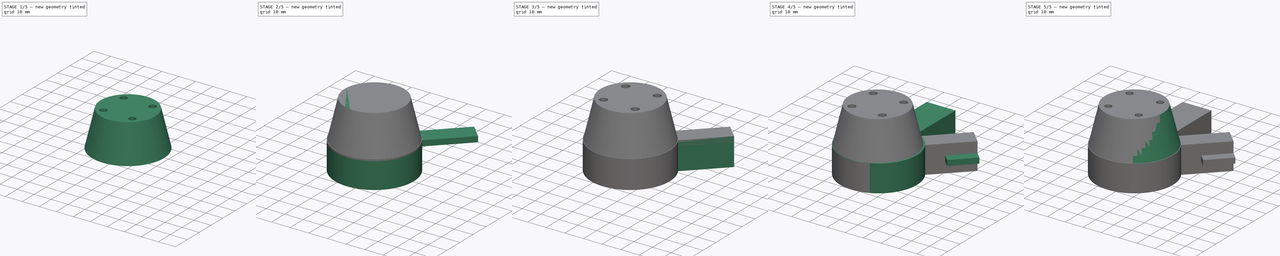
[diagram: build sequence overview — one tinted view per stage of 5, left to right]
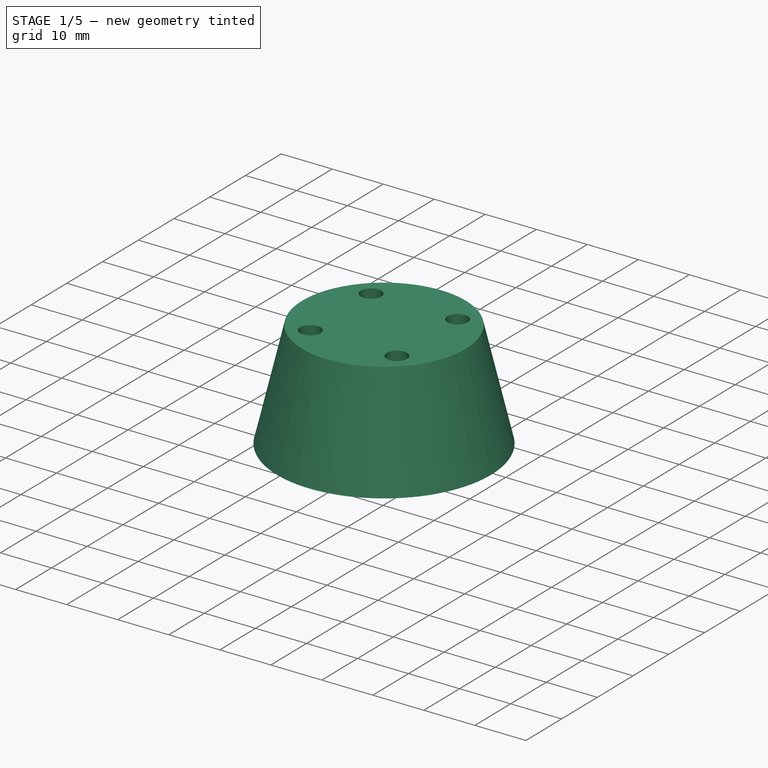
[diagram: stage 1 of 5 — iso view after this stage's code; geometry added in this stage tinted green]
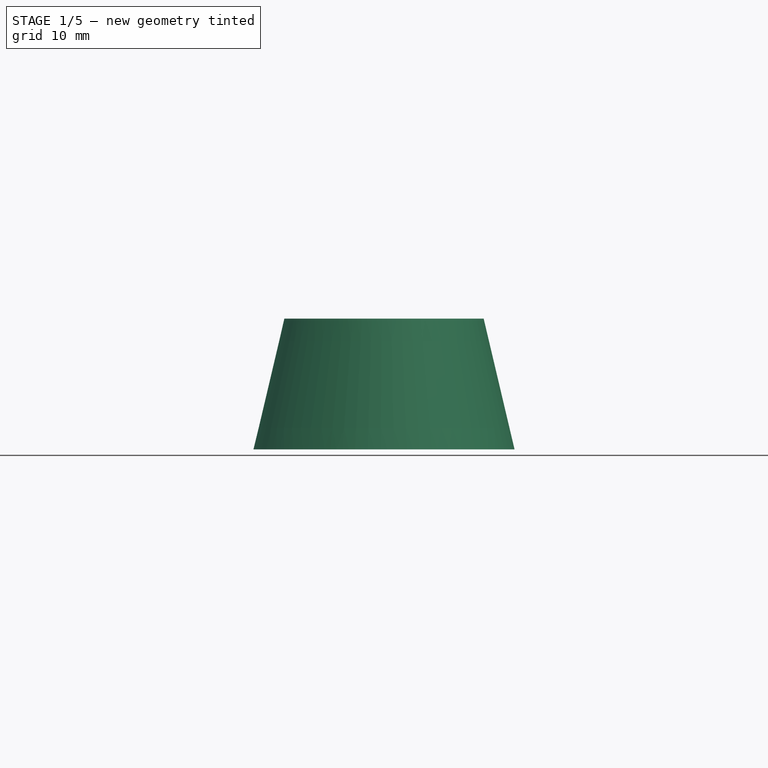
[diagram: stage 1 of 5 — front view after this stage's code; geometry added in this stage tinted green]
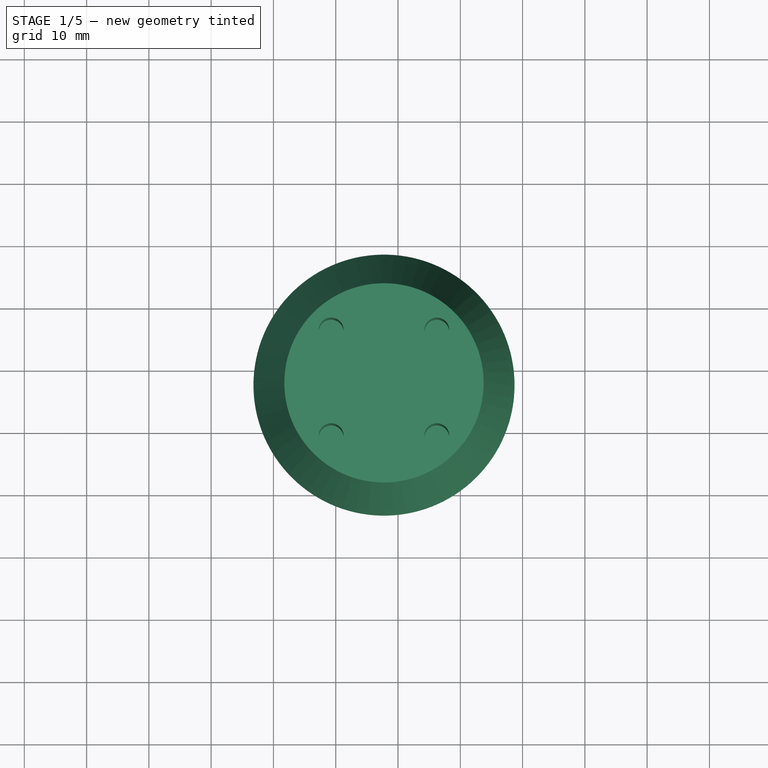
[diagram: stage 1 of 5 — top view after this stage's code; geometry added in this stage tinted green]
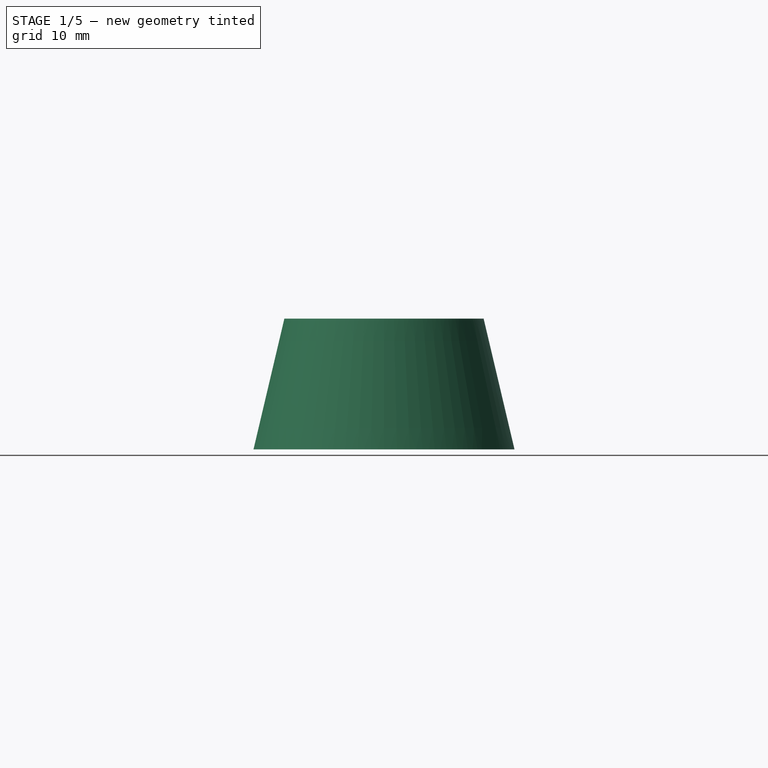
[diagram: stage 1 of 5 — right view after this stage's code; geometry added in this stage tinted green]
FCSTD DOCUMENT  (FreeCAD 0.20R29177 +426 (Git))
Label: ReverseMotorAdapter
License: All rights reserved
LicenseURL: http://en.wikipedia.org/wiki/All_rights_reserved
objects: Sketcher::SketchObject×15, Part::Extrusion×9, Part::MultiFuse×4, Part::Loft×3, Part::Cut×3
note: 34 computed .brp shape members not serialized (recipe doc carries the construction recipe); baked Part::Feature solids carry a one-line shape summary decoded from their .brp

FEATURE [Sketcher::SketchObject] Sketch012  label="SocketSketch002"
  FullyConstrained = true
  sketch-geometry (17):
    g0: LineSegment StartX=0 StartY=0 StartZ=0 EndX=15.5 EndY=0 EndZ=0
    g1: LineSegment StartX=15.5 StartY=0 StartZ=0 EndX=15.5 EndY=15.5 EndZ=0
    g2: LineSegment StartX=15.5 StartY=15.5 StartZ=0 EndX=0 EndY=15.5 EndZ=0
    g3: LineSegment StartX=0 StartY=15.5 StartZ=0 EndX=0 EndY=0 EndZ=0
    g4: LineSegment StartX=0 StartY=0 StartZ=0 EndX=15.5 EndY=15.5 EndZ=0
    g5: LineSegment StartX=0 StartY=15.5 StartZ=0 EndX=15.5 EndY=0 EndZ=0
    g6: GeomPoint X=7.75 Y=7.75 Z=0
    g7: Circle CenterX=7.75 CenterY=7.75 CenterZ=0 NormalX=0 NormalY=0 NormalZ=1 AngleXU=0 Radius=20.9602
    g8: LineSegment StartX=15.5 StartY=15.5 StartZ=0 EndX=22.5711 EndY=22.5711 EndZ=0
    g9: LineSegment StartX=36.2853 StartY=43.3564 StartZ=0 EndX=43.3564 EndY=36.2853 EndZ=0
    g10: LineSegment StartX=43.3564 StartY=36.2853 StartZ=0 EndX=25.6787 EndY=18.6077 EndZ=0
    g11: LineSegment StartX=18.6077 StartY=25.6787 StartZ=0 EndX=36.2853 EndY=43.3564 EndZ=0
    g12: LineSegment StartX=-10.1787 StartY=18.6077 StartZ=0 EndX=-27.8564 EndY=36.2853 EndZ=0
    g13: LineSegment StartX=-3.10766 StartY=25.6787 StartZ=0 EndX=-20.7853 EndY=43.3564 EndZ=0
    g14: LineSegment StartX=-20.7853 StartY=43.3564 StartZ=0 EndX=-27.8564 EndY=36.2853 EndZ=0
    g15: ArcOfCircle CenterX=7.75 CenterY=7.75 CenterZ=0 NormalX=0 NormalY=0 NormalZ=1 AngleXU=0 Radius=20.9602 StartAngle=2.59706 EndAngle=6.82771
    g16: ArcOfCircle CenterX=7.75 CenterY=7.75 CenterZ=0 NormalX=0 NormalY=0 NormalZ=1 AngleXU=0 Radius=20.9602 StartAngle=1.02627 EndAngle=2.11532
  constraints (47):
    c: Coincident(g0,g1)
    c: Coincident(g1,g2)
    c: Coincident(g2,g3)
    c: Coincident(g3,g0)
    c: Horizontal(g0)
    c: Horizontal(g2)
    c: Vertical(g1)
    c: Vertical(g3)
    c: Coincident(g0,g-1)
    c: Distance(g1) = 15.5
    c: Equal(g1,g2)
    c: Coincident(g4,g0)
    c: Coincident(g4,g1)
    c: Coincident(g5,g2)
    c: Coincident(g5,g0)
    c: PointOnObject(g6,g5)
    c: PointOnObject(g6,g4)
    c: Coincident(g7,g6)
    c: Coincident(g8,g1)
    c: PointOnObject(g8,g7)
    c: Parallel(g8,g4)
    c: Distance(g8) = 10
    c: Coincident(g10,g9)
    c: PointOnObject(g10,g7)
    c: PointOnObject(g11,g7)
    c: Coincident(g11,g9)
    c: Parallel(g11,g10)
    c: Perpendicular(g9,g10)
    c: Equal(g11,g10)
    c: Distance(g9) = 10
    c: Distance(g10) = 25
    c: Angle(g10,g-1) = 2.35619
    c: PointOnObject(g13,g7)
    c: Coincident(g14,g13)
    c: Coincident(g14,g12)
    c: Parallel(g12,g13)
    c: Perpendicular(g14,g12)
    c: Equal(g12,g13)
    c: Equal(g13,g11)
    c: Equal(g14,g9)
    c: Angle(g12,g-1) = 0.785398
    c: Coincident(g15,g6)
    c: Coincident(g15,g12)
    c: Coincident(g15,g10)
    c: PointOnObject(g16,g4)
    c: Coincident(g16,g13)
    c: Coincident(g16,g11)
FEATURE [Part::Extrusion] Extrude006  label="Socket002"
  Base = -> Sketch012
  Dir = (0,0,1)
  DirMode = 2
  FaceMakerClass = Part::FaceMakerBullseye
  LengthFwd = 15
  LengthRev = 0
  Solid = true
  Symmetric = false
FEATURE [Sketcher::SketchObject] Sketch013  label="ShaftTopSketch002"
  AttachmentOffset = pos=(0,0,20) rot=(0,0,1;0rad)
  ExternalGeometry = -> [Extrude006]
  FullyConstrained = true
  MapMode = 5
  Placement = pos=(0,0,35) rot=(0,0,1;0rad)
  Support = -> [Extrude006]
  sketch-geometry (1):
    g0: Circle CenterX=7.75 CenterY=7.75 CenterZ=0 NormalX=0 NormalY=0 NormalZ=1 AngleXU=0 Radius=16
  constraints (2):
    c: Diameter(g0) = 32
    c: Coincident(g0,g-4)
FEATURE [Sketcher::SketchObject] Sketch014  label="ShaftBottomSketch002"
  AttachmentOffset = pos=(0,0,-1) rot=(0,0,1;0rad)
  ExternalGeometry = -> [Extrude006]
  FullyConstrained = true
  MapMode = 5
  Placement = pos=(0,0,14) rot=(0,0,1;0rad)
  Support = -> [Extrude006]
  sketch-geometry (2):
    g0: Circle CenterX=7.75 CenterY=7.75 CenterZ=0 NormalX=0 NormalY=0 NormalZ=1 AngleXU=0 Radius=20.9602
    g1: LineSegment StartX=7.75 StartY=7.75 StartZ=0 EndX=28.7102 EndY=7.75 EndZ=0
  constraints (5):
    c: PointOnObject(g1,g0)
    c: Horizontal(g1)
    c: PointOnObject(g1,g-3)
    c: Coincident(g0,g-3)
    c: Coincident(g1,g0)
FEATURE [Part::Loft] Loft002  label="Shaft002"
  Closed = false
  MaxDegree = 5
  Ruled = false
  Sections = -> [Sketch013,Sketch014]
  Solid = true
FEATURE [Sketcher::SketchObject] Sketch015  label="ScrewHolesSketch002"
  ExternalGeometry = -> [Sketch013]
  FullyConstrained = true
  MapMode = 5
  Placement = pos=(0,0,35) rot=(0,0,1;0rad)
  Support = -> [Loft002]
  sketch-geometry (8):
    g0: Circle CenterX=16.2353 CenterY=16.2353 CenterZ=0 NormalX=0 NormalY=0 NormalZ=1 AngleXU=0 Radius=2
    g1: LineSegment StartX=7.75 StartY=7.75 StartZ=0 EndX=16.2353 EndY=16.2353 EndZ=0
    g2: Circle CenterX=-0.735281 CenterY=16.2353 CenterZ=0 NormalX=0 NormalY=0 NormalZ=1 AngleXU=0 Radius=2
    g3: LineSegment StartX=7.75 StartY=7.75 StartZ=0 EndX=-0.735281 EndY=16.2353 EndZ=0
    g4: Circle CenterX=-0.735281 CenterY=-0.735281 CenterZ=0 NormalX=0 NormalY=0 NormalZ=1 AngleXU=0 Radius=2
    g5: LineSegment StartX=7.75 StartY=7.75 StartZ=0 EndX=-0.735281 EndY=-0.735281 EndZ=0
    g6: Circle CenterX=16.2353 CenterY=-0.735281 CenterZ=0 NormalX=0 NormalY=0 NormalZ=1 AngleXU=0 Radius=2
    g7: LineSegment StartX=7.75 StartY=7.75 StartZ=0 EndX=16.2353 EndY=-0.735281 EndZ=0
  constraints (20):
    c: Distance(g-3,g0) = 12
    c: Diameter(g0) = 4
    c: Coincident(g1,g-3)
    c: Coincident(g1,g0)
    c: Angle(g-1,g1) = 0.785398
    c: Diameter(g2) = 4
    c: Coincident(g3,g2)
    c: Distance(g3) = 12
    c: Coincident(g3,g1)
    c: Angle(g3,g-1) = 0.785398
    c: Diameter(g4) = 4
    c: Coincident(g5,g4)
    c: Angle(g-1,g5) = 0.785398
    c: Coincident(g5,g1)
    c: Distance(g5) = 12
    c: Diameter(g6) = 4
    c: Coincident(g7,g6)
    c: Distance(g7) = 12
    c: Coincident(g7,g1)
    c: Angle(g7,g-1) = 0.785398
FEATURE [Part::Extrusion] Extrude007  label="ScrewHoles002"
  Base = -> Sketch015
  Dir = (0,0,1)
  DirMode = 2
  FaceMakerClass = Part::FaceMakerBullseye
  LengthFwd = 0
  LengthRev = 20
  Solid = true
  Symmetric = false
FEATURE [Part::Cut] Cut002  label="ShaftScrews"
  Base = -> Loft002
  Tool = -> Extrude007
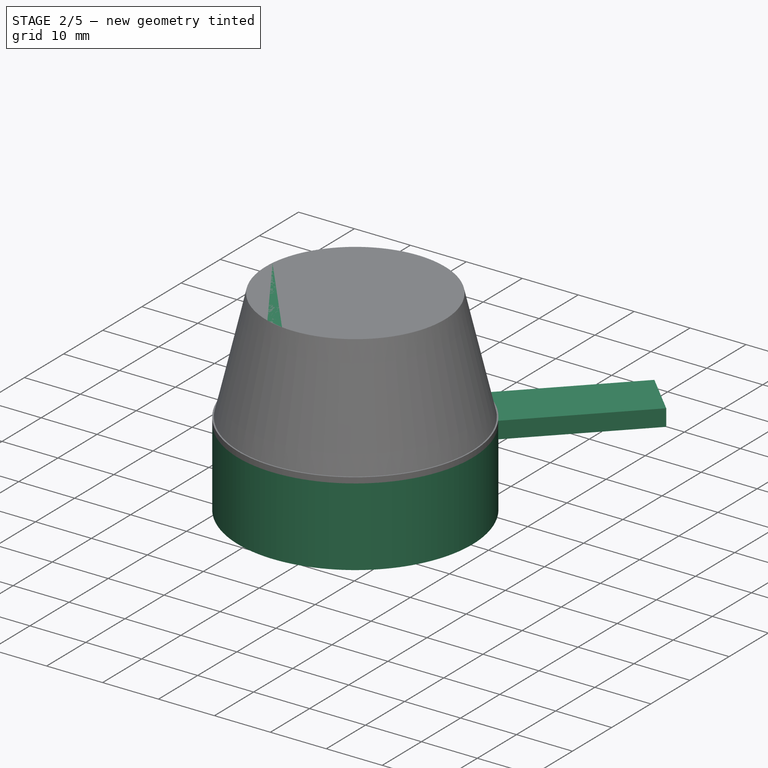
[diagram: stage 2 of 5 — iso view after this stage's code; geometry added in this stage tinted green]
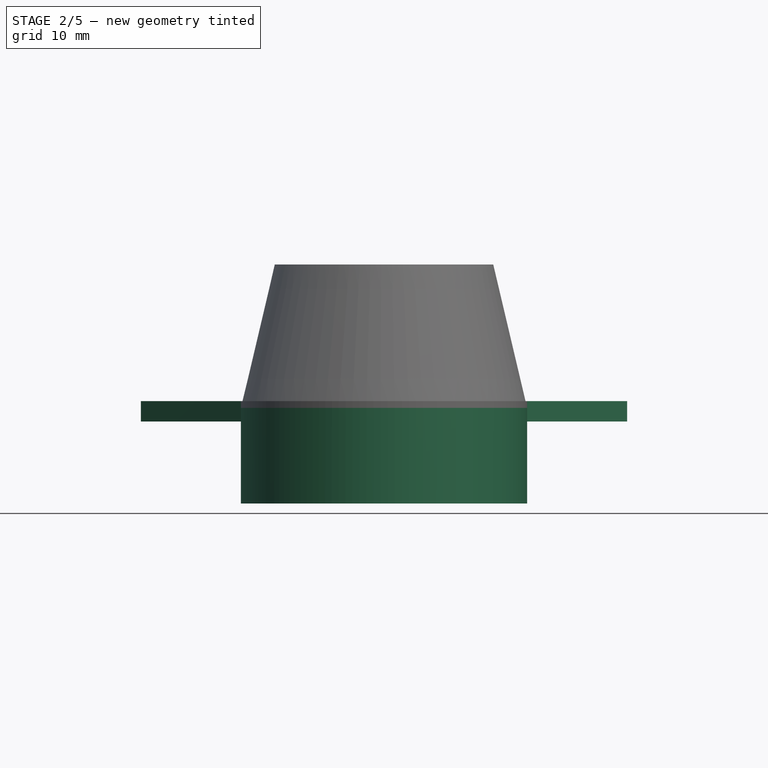
[diagram: stage 2 of 5 — front view after this stage's code; geometry added in this stage tinted green]
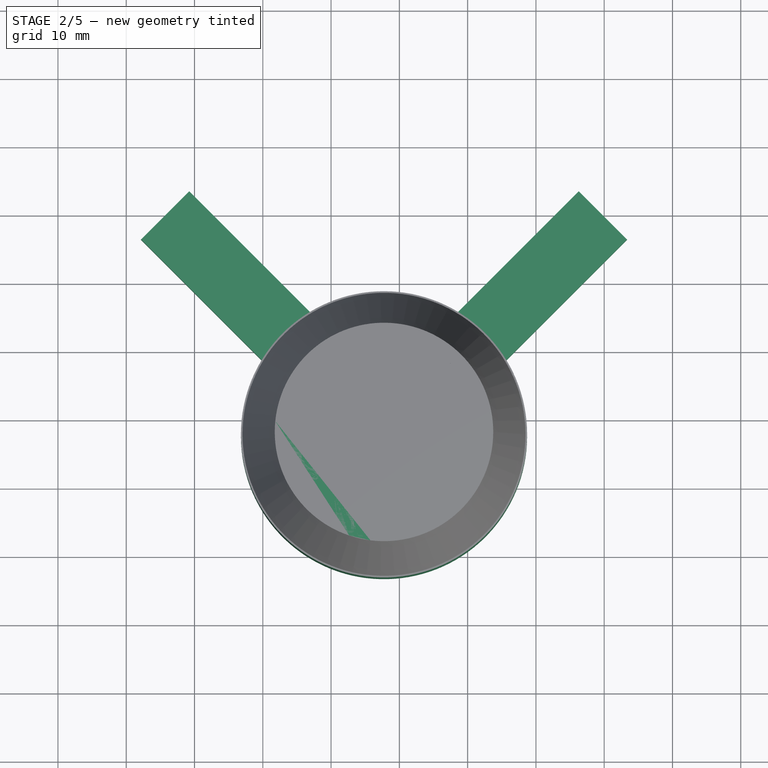
[diagram: stage 2 of 5 — top view after this stage's code; geometry added in this stage tinted green]
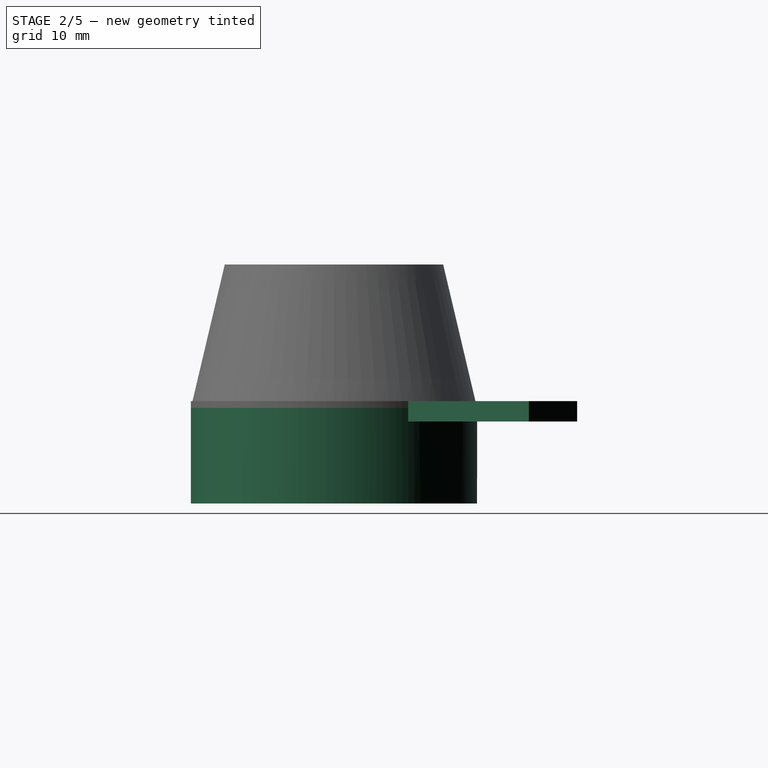
[diagram: stage 2 of 5 — right view after this stage's code; geometry added in this stage tinted green]
FEATURE [Sketcher::SketchObject] Sketch006  label="SocketSketch001"
  FullyConstrained = true
  sketch-geometry (17):
    g0: LineSegment StartX=0 StartY=0 StartZ=0 EndX=15.5 EndY=0 EndZ=0
    g1: LineSegment StartX=15.5 StartY=0 StartZ=0 EndX=15.5 EndY=15.5 EndZ=0
    g2: LineSegment StartX=15.5 StartY=15.5 StartZ=0 EndX=0 EndY=15.5 EndZ=0
    g3: LineSegment StartX=0 StartY=15.5 StartZ=0 EndX=0 EndY=0 EndZ=0
    g4: LineSegment StartX=0 StartY=0 StartZ=0 EndX=15.5 EndY=15.5 EndZ=0
    g5: LineSegment StartX=0 StartY=15.5 StartZ=0 EndX=15.5 EndY=0 EndZ=0
    g6: GeomPoint X=7.75 Y=7.75 Z=0
    g7: Circle CenterX=7.75 CenterY=7.75 CenterZ=0 NormalX=0 NormalY=0 NormalZ=1 AngleXU=0 Radius=20.9602
    g8: LineSegment StartX=15.5 StartY=15.5 StartZ=0 EndX=22.5711 EndY=22.5711 EndZ=0
    g9: LineSegment StartX=36.2853 StartY=43.3564 StartZ=0 EndX=43.3564 EndY=36.2853 EndZ=0
    g10: LineSegment StartX=43.3564 StartY=36.2853 StartZ=0 EndX=25.6787 EndY=18.6077 EndZ=0
    g11: LineSegment StartX=18.6077 StartY=25.6787 StartZ=0 EndX=36.2853 EndY=43.3564 EndZ=0
    g12: LineSegment StartX=-10.1787 StartY=18.6077 StartZ=0 EndX=-27.8564 EndY=36.2853 EndZ=0
    g13: LineSegment StartX=-3.10766 StartY=25.6787 StartZ=0 EndX=-20.7853 EndY=43.3564 EndZ=0
    g14: LineSegment StartX=-20.7853 StartY=43.3564 StartZ=0 EndX=-27.8564 EndY=36.2853 EndZ=0
    g15: ArcOfCircle CenterX=7.75 CenterY=7.75 CenterZ=0 NormalX=0 NormalY=0 NormalZ=1 AngleXU=0 Radius=20.9602 StartAngle=2.59706 EndAngle=6.82771
    g16: ArcOfCircle CenterX=7.75 CenterY=7.75 CenterZ=0 NormalX=0 NormalY=0 NormalZ=1 AngleXU=0 Radius=20.9602 StartAngle=1.02627 EndAngle=2.11532
  constraints (47):
    c: Coincident(g0,g1)
    c: Coincident(g1,g2)
    c: Coincident(g2,g3)
    c: Coincident(g3,g0)
    c: Horizontal(g0)
    c: Horizontal(g2)
    c: Vertical(g1)
    c: Vertical(g3)
    c: Coincident(g0,g-1)
    c: Distance(g1) = 15.5
    c: Equal(g1,g2)
    c: Coincident(g4,g0)
    c: Coincident(g4,g1)
    c: Coincident(g5,g2)
    c: Coincident(g5,g0)
    c: PointOnObject(g6,g5)
    c: PointOnObject(g6,g4)
    c: Coincident(g7,g6)
    c: Coincident(g8,g1)
    c: PointOnObject(g8,g7)
    c: Parallel(g8,g4)
    c: Distance(g8) = 10
    c: Coincident(g10,g9)
    c: PointOnObject(g10,g7)
    c: PointOnObject(g11,g7)
    c: Coincident(g11,g9)
    c: Parallel(g11,g10)
    c: Perpendicular(g9,g10)
    c: Equal(g11,g10)
    c: Distance(g9) = 10
    c: Distance(g10) = 25
    c: Angle(g10,g-1) = 2.35619
    c: PointOnObject(g13,g7)
    c: Coincident(g14,g13)
    c: Coincident(g14,g12)
    c: Parallel(g12,g13)
    c: Perpendicular(g14,g12)
    c: Equal(g12,g13)
    c: Equal(g13,g11)
    c: Equal(g14,g9)
    c: Angle(g12,g-1) = 0.785398
    c: Coincident(g15,g6)
    c: Coincident(g15,g12)
    c: Coincident(g15,g10)
    c: PointOnObject(g16,g4)
    c: Coincident(g16,g13)
    c: Coincident(g16,g11)
FEATURE [Part::Extrusion] Extrude002  label="Socket001"
  Base = -> Sketch006
  Dir = (0,0,1)
  DirMode = 2
  FaceMakerClass = Part::FaceMakerBullseye
  LengthFwd = 15
  LengthRev = 0
  Solid = true
  Symmetric = false
FEATURE [Sketcher::SketchObject] Sketch007  label="ShaftTopSketch001"
  AttachmentOffset = pos=(0,0,20) rot=(0,0,1;0rad)
  ExternalGeometry = -> [Extrude002]
  FullyConstrained = true
  MapMode = 5
  Placement = pos=(0,0,35) rot=(0,0,1;0rad)
  Support = -> [Extrude002]
  sketch-geometry (1):
    g0: Circle CenterX=7.75 CenterY=7.75 CenterZ=0 NormalX=0 NormalY=0 NormalZ=1 AngleXU=0 Radius=16
  constraints (2):
    c: Coincident(g0,g-3)
    c: Diameter(g0) = 32
FEATURE [Sketcher::SketchObject] Sketch008  label="ShaftBottomSketch001"
  AttachmentOffset = pos=(0,0,-1) rot=(0,0,1;0rad)
  ExternalGeometry = -> [Extrude002]
  FullyConstrained = true
  MapMode = 5
  Placement = pos=(0,0,14) rot=(0,0,1;0rad)
  Support = -> [Extrude002]
  sketch-geometry (2):
    g0: Circle CenterX=7.75 CenterY=7.75 CenterZ=0 NormalX=0 NormalY=0 NormalZ=1 AngleXU=0 Radius=20.9602
    g1: LineSegment StartX=7.75 StartY=7.75 StartZ=0 EndX=-13.2102 EndY=7.75 EndZ=0
  constraints (5):
    c: Coincident(g0,g-3)
    c: Coincident(g1,g0)
    c: PointOnObject(g1,g-3)
    c: PointOnObject(g1,g0)
    c: Horizontal(g1)
FEATURE [Part::Loft] Loft001  label="Shaft001"
  Closed = false
  MaxDegree = 5
  Ruled = false
  Sections = -> [Sketch007,Sketch008]
  Solid = true
FEATURE [Sketcher::SketchObject] Sketch016  label="BladeSketch"
  ExternalGeometry = -> [Extrude006]
  FullyConstrained = true
  MapMode = 5
  Placement = pos=(0,0,15) rot=(0,0,1;0rad)
  Support = -> [Extrude006]
  sketch-geometry (8):
    g0: LineSegment StartX=18.6077 StartY=25.6787 StartZ=0 EndX=36.2853 EndY=43.3564 EndZ=0
    g1: LineSegment StartX=25.6787 StartY=18.6077 StartZ=0 EndX=43.3564 EndY=36.2853 EndZ=0
    g2: LineSegment StartX=43.3564 StartY=36.2853 StartZ=0 EndX=36.2853 EndY=43.3564 EndZ=0
    g3: LineSegment StartX=-10.1787 StartY=18.6077 StartZ=0 EndX=-27.8564 EndY=36.2853 EndZ=0
    g4: LineSegment StartX=-3.10766 StartY=25.6787 StartZ=0 EndX=-20.7853 EndY=43.3564 EndZ=0
    g5: LineSegment StartX=-20.7853 StartY=43.3564 StartZ=0 EndX=-27.8564 EndY=36.2853 EndZ=0
    g6: ArcOfCircle CenterX=7.75 CenterY=7.75 CenterZ=0 NormalX=0 NormalY=0 NormalZ=1 AngleXU=0 Radius=20.9602 StartAngle=2.11532 EndAngle=2.59706
    g7: ArcOfCircle CenterX=7.75 CenterY=7.75 CenterZ=0 NormalX=0 NormalY=0 NormalZ=1 AngleXU=0 Radius=20.9602 StartAngle=0.544528 EndAngle=1.02627
  constraints (24):
    c: PointOnObject(g0,g-3)
    c: Coincident(g2,g1)
    c: Coincident(g2,g0)
    c: Parallel(g1,g0)
    c: Perpendicular(g2,g0)
    c: Equal(g1,g0)
    c: Distance(g2) = 10
    c: Distance(g1) = 25
    c: PointOnObject(g3,g-3)
    c: Coincident(g5,g4)
    c: Coincident(g5,g3)
    c: Equal(g3,g4)
    c: Parallel(g4,g3)
    c: Perpendicular(g5,g3)
    c: Equal(g5,g2)
    c: Equal(g3,g0)
    c: Coincident(g6,g-3)
    c: Coincident(g6,g3)
    c: Coincident(g6,g4)
    c: Angle(g3,g-1) = 0.785398
    c: Coincident(g7,g6)
    c: Coincident(g7,g0)
    c: Coincident(g7,g1)
    c: Angle(g1,g-1) = 2.35619
FEATURE [Part::Extrusion] Extrude008  label="Blades"
  Base = -> Sketch016
  Dir = (0,0,1)
  DirMode = 2
  FaceMakerClass = Part::FaceMakerBullseye
  LengthFwd = 0
  LengthRev = 3
  Solid = true
  Symmetric = false
FEATURE [Part::MultiFuse] Fusion003  label="AdapterV3Blades"
  Shapes = -> [Extrude006,Extrude008,Cut002]
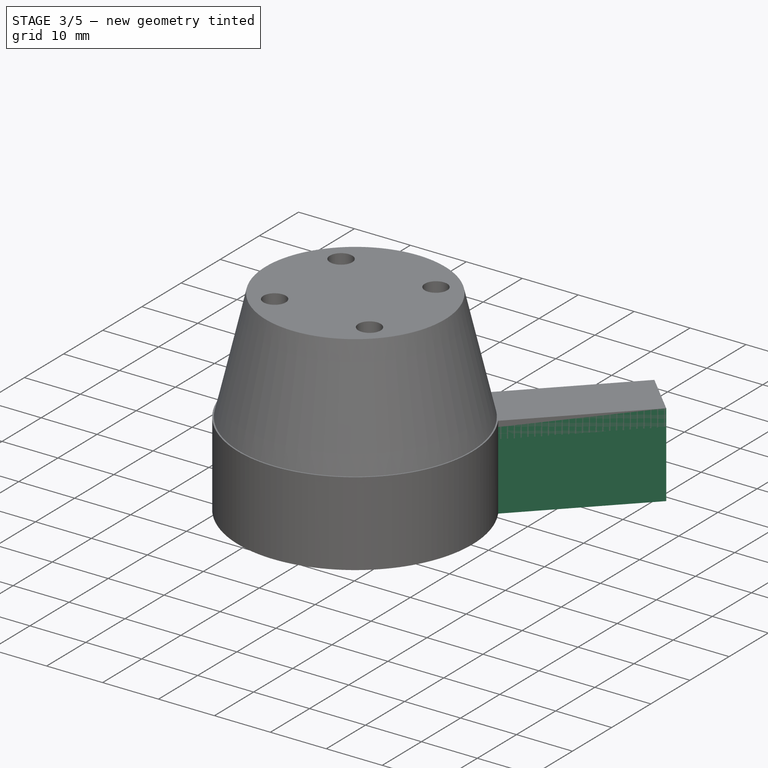
[diagram: stage 3 of 5 — iso view after this stage's code; geometry added in this stage tinted green]
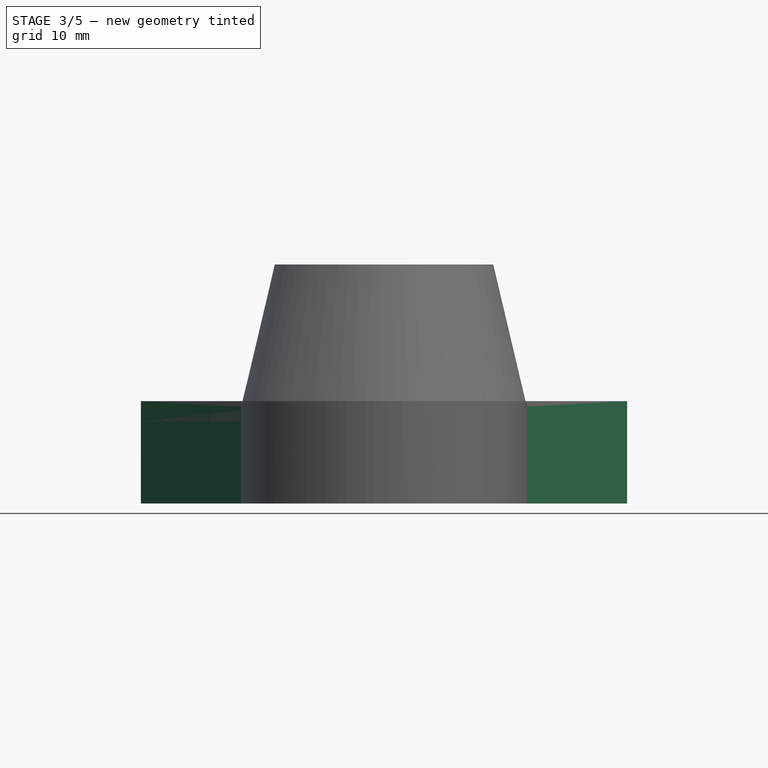
[diagram: stage 3 of 5 — front view after this stage's code; geometry added in this stage tinted green]
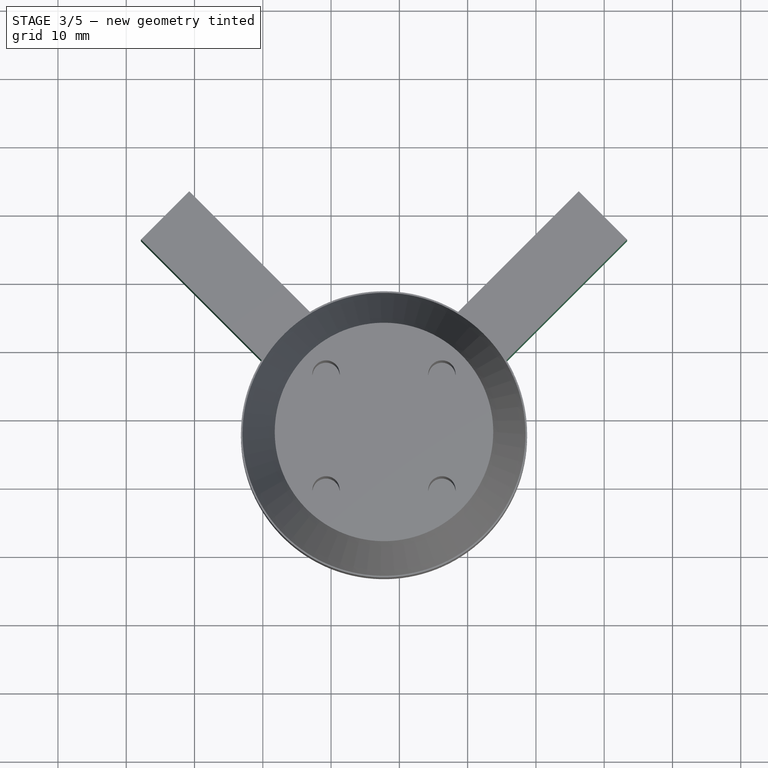
[diagram: stage 3 of 5 — top view after this stage's code; geometry added in this stage tinted green]
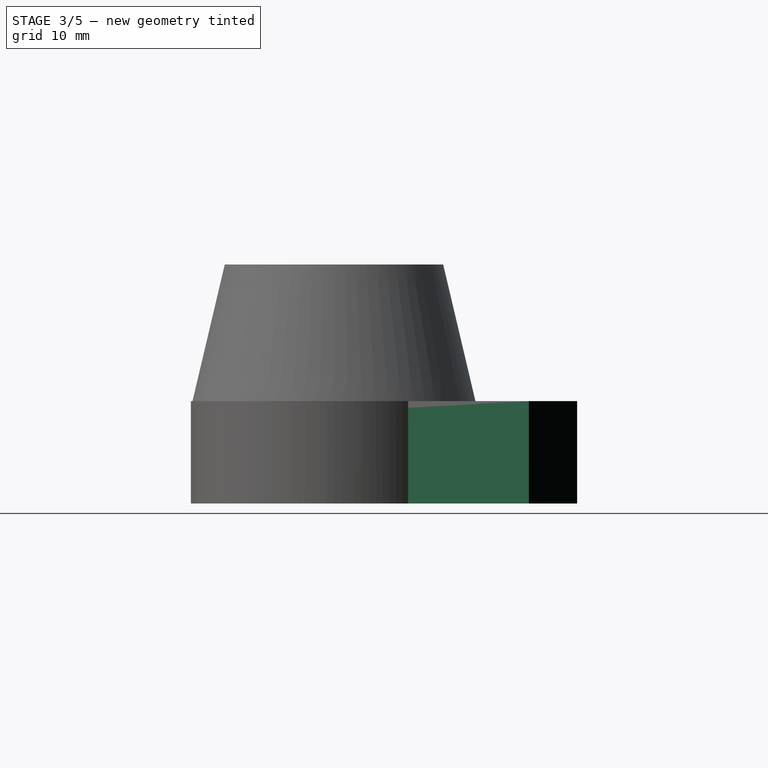
[diagram: stage 3 of 5 — right view after this stage's code; geometry added in this stage tinted green]
FEATURE [Sketcher::SketchObject] Sketch009  label="ScrewHolesSketch001"
  ExternalGeometry = -> [Sketch007]
  FullyConstrained = true
  MapMode = 5
  Placement = pos=(0,0,35) rot=(0,0,1;0rad)
  Support = -> [Loft001]
  sketch-geometry (8):
    g0: Circle CenterX=16.2353 CenterY=16.2353 CenterZ=0 NormalX=0 NormalY=0 NormalZ=1 AngleXU=0 Radius=2
    g1: LineSegment StartX=7.75 StartY=7.75 StartZ=0 EndX=16.2353 EndY=16.2353 EndZ=0
    g2: Circle CenterX=-0.735281 CenterY=16.2353 CenterZ=0 NormalX=0 NormalY=0 NormalZ=1 AngleXU=0 Radius=2
    g3: LineSegment StartX=7.75 StartY=7.75 StartZ=0 EndX=-0.735281 EndY=16.2353 EndZ=0
    g4: Circle CenterX=-0.735281 CenterY=-0.735281 CenterZ=0 NormalX=0 NormalY=0 NormalZ=1 AngleXU=0 Radius=2
    g5: LineSegment StartX=7.75 StartY=7.75 StartZ=0 EndX=-0.735281 EndY=-0.735281 EndZ=0
    g6: Circle CenterX=16.2353 CenterY=-0.735281 CenterZ=0 NormalX=0 NormalY=0 NormalZ=1 AngleXU=0 Radius=2
    g7: LineSegment StartX=7.75 StartY=7.75 StartZ=0 EndX=16.2353 EndY=-0.735281 EndZ=0
  constraints (20):
    c: Distance(g-3,g0) = 12
    c: Diameter(g0) = 4
    c: Coincident(g1,g-3)
    c: Coincident(g1,g0)
    c: Angle(g-1,g1) = 0.785398
    c: Diameter(g2) = 4
    c: Coincident(g3,g2)
    c: Distance(g3) = 12
    c: Coincident(g3,g1)
    c: Angle(g3,g-1) = 0.785398
    c: Diameter(g4) = 4
    c: Coincident(g5,g4)
    c: Angle(g-1,g5) = 0.785398
    c: Coincident(g5,g1)
    c: Distance(g5) = 12
    c: Diameter(g6) = 4
    c: Coincident(g7,g6)
    c: Distance(g7) = 12
    c: Coincident(g7,g1)
    c: Angle(g7,g-1) = 0.785398
FEATURE [Part::Extrusion] Extrude003  label="ScrewHoles001"
  Base = -> Sketch009
  Dir = (0,0,1)
  DirMode = 2
  FaceMakerClass = Part::FaceMakerBullseye
  LengthFwd = 0
  LengthRev = 20
  Solid = true
  Symmetric = false
FEATURE [Part::MultiFuse] Fusion001
  Shapes = -> [Extrude002,Loft001]
FEATURE [Part::Cut] Cut001  label="AdapterV2"
  Base = -> Fusion001
  Tool = -> Extrude003
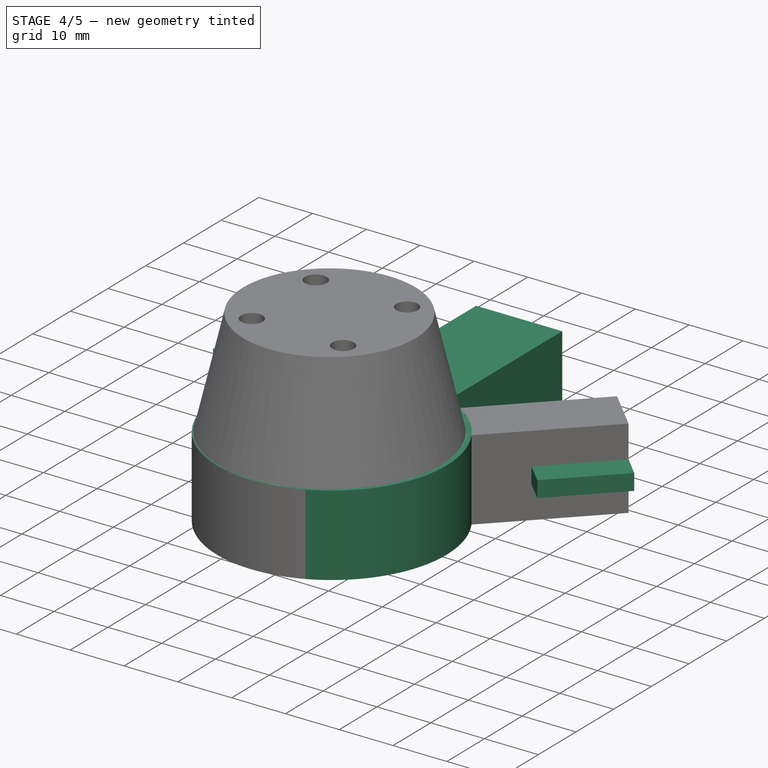
[diagram: stage 4 of 5 — iso view after this stage's code; geometry added in this stage tinted green]
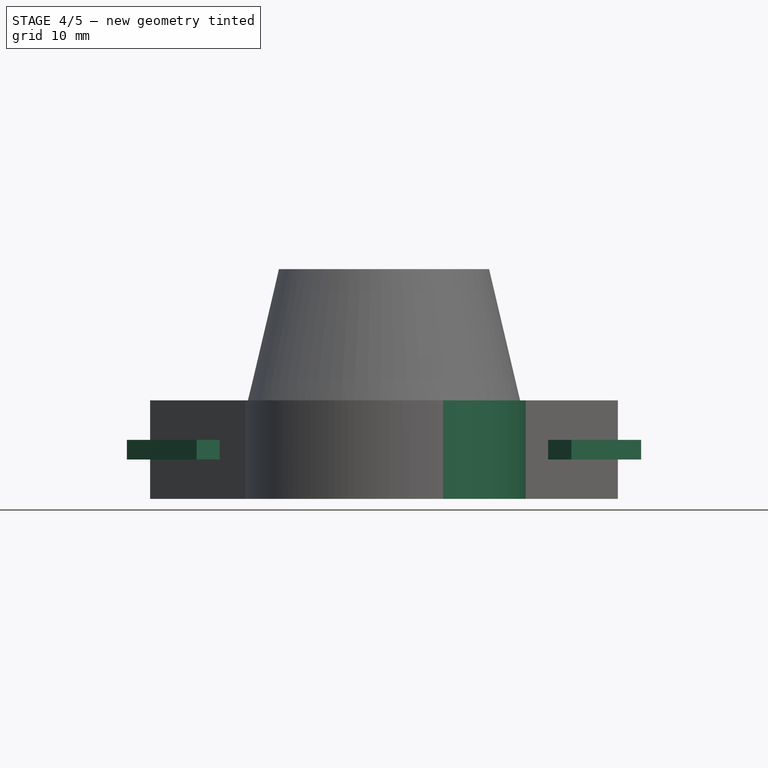
[diagram: stage 4 of 5 — front view after this stage's code; geometry added in this stage tinted green]
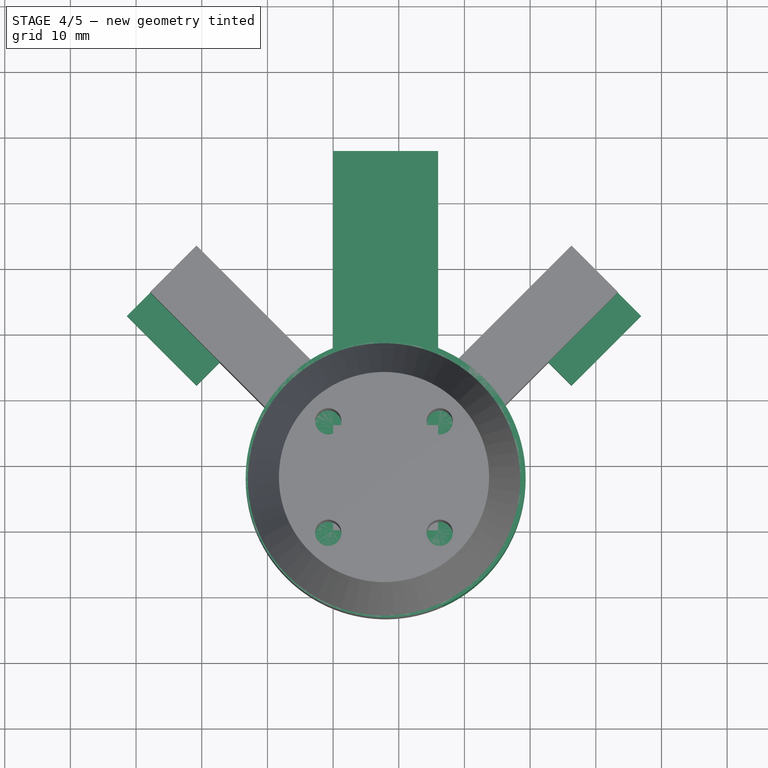
[diagram: stage 4 of 5 — top view after this stage's code; geometry added in this stage tinted green]
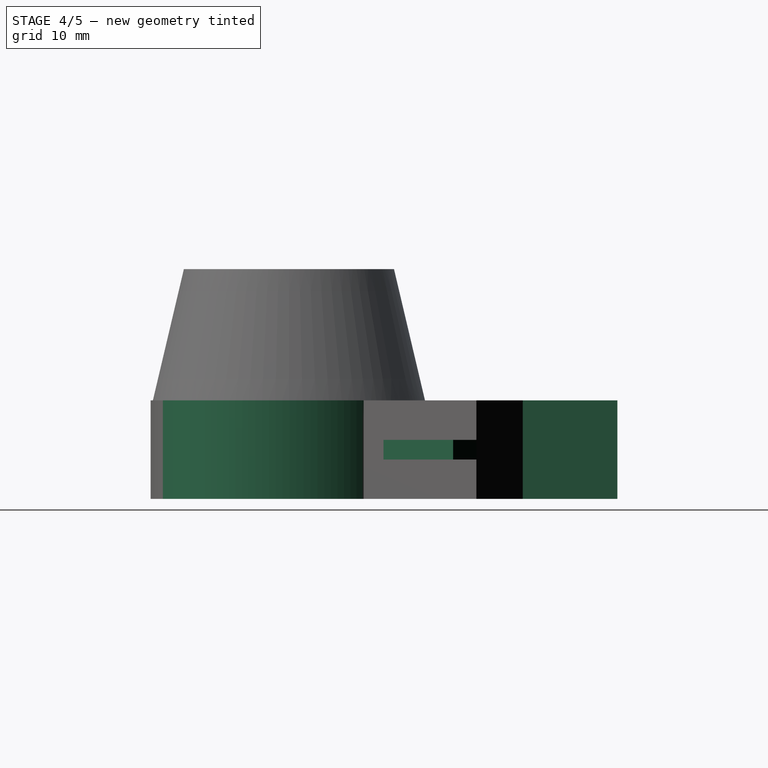
[diagram: stage 4 of 5 — right view after this stage's code; geometry added in this stage tinted green]
FEATURE [Sketcher::SketchObject] Sketch  label="SocketSketch"
  FullyConstrained = true
  sketch-geometry (16):
    g0: LineSegment StartX=0 StartY=0 StartZ=0 EndX=16 EndY=0 EndZ=0
    g1: LineSegment StartX=16 StartY=0 StartZ=0 EndX=16 EndY=16 EndZ=0
    g2: LineSegment StartX=16 StartY=16 StartZ=0 EndX=0 EndY=16 EndZ=0
    g3: LineSegment StartX=0 StartY=16 StartZ=0 EndX=0 EndY=0 EndZ=0
    g4: LineSegment StartX=0 StartY=0 StartZ=0 EndX=16 EndY=16 EndZ=0
    g5: LineSegment StartX=16 StartY=0 StartZ=0 EndX=0 EndY=16 EndZ=0
    g6: LineSegment StartX=16 StartY=16 StartZ=0 EndX=23.0711 EndY=23.0711 EndZ=0
    g7: LineSegment StartX=16 StartY=16 StartZ=0 EndX=0 EndY=16 EndZ=0
    g8: LineSegment StartX=16 StartY=27.7554 StartZ=0 EndX=16 EndY=16 EndZ=0
    g9: LineSegment StartX=0 StartY=16 StartZ=0 EndX=0 EndY=27.7554 EndZ=0
    g10: ArcOfCircle CenterX=8 CenterY=8 CenterZ=0 NormalX=0 NormalY=0 NormalZ=1 AngleXU=0 Radius=21.3137 StartAngle=1.95557 EndAngle=7.46921
    g11: ArcOfCircle CenterX=8 CenterY=8 CenterZ=0 NormalX=0 NormalY=0 NormalZ=1 AngleXU=0 Radius=21.3137 StartAngle=1.18603 EndAngle=1.95557
    g12: LineSegment StartX=0 StartY=27.7554 StartZ=0 EndX=16 EndY=27.7554 EndZ=0
    g13: LineSegment StartX=16 StartY=27.7554 StartZ=0 EndX=16 EndY=57.7554 EndZ=0
    g14: LineSegment StartX=16 StartY=57.7554 StartZ=0 EndX=0 EndY=57.7554 EndZ=0
    g15: LineSegment StartX=0 StartY=57.7554 StartZ=0 EndX=0 EndY=27.7554 EndZ=0
  constraints (45):
    c: Coincident(g0,g1)
    c: Coincident(g1,g2)
    c: Coincident(g2,g3)
    c: Coincident(g3,g0)
    c: Horizontal(g0)
    c: Horizontal(g2)
    c: Vertical(g1)
    c: Vertical(g3)
    c: Coincident(g0,g-1)
    c: Distance(g2) = 16
    c: Equal(g1,g2)
    c: Coincident(g4,g0)
    c: Coincident(g4,g1)
    c: Coincident(g5,g0)
    c: Coincident(g5,g2)
    c: PointOnObject(g10,g4)
    c: PointOnObject(g10,g5)
    c: Coincident(g6,g1)
    c: Distance(g6) = 10
    c: Coincident(g7,g9)
    c: Coincident(g8,g7)
    c: Horizontal(g7)
    c: Coincident(g7,g1)
    c: Vertical(g8)
    c: Vertical(g9)
    c: Coincident(g10,g11)
    c: Coincident(g10,g11)
    c: PointOnObject(g6,g10)
    c: Perpendicular(g10,g6)
    c: PointOnObject(g8,g11)
    c: PointOnObject(g11,g9)
    c: PointOnObject(g10,g8)
    c: Coincident(g9,g10)
    c: PointOnObject(g7,g-2)
    c: Coincident(g12,g13)
    c: Coincident(g13,g14)
    c: Coincident(g14,g15)
    c: Coincident(g15,g12)
    c: Horizontal(g12)
    c: Horizontal(g14)
    c: Coincident(g12,g10)
    c: PointOnObject(g12,g11)
    c: Distance(g13) = 30
    c: Parallel(g15,g13)
    c: Perpendicular(g14,g13)
FEATURE [Part::Extrusion] Extrude  label="Socket"
  Base = -> Sketch
  Dir = (0,0,1)
  DirMode = 2
  FaceMakerClass = Part::FaceMakerBullseye
  LengthFwd = 15
  LengthRev = 0
  Solid = true
  Symmetric = false
FEATURE [Sketcher::SketchObject] Sketch010
  ExternalGeometry = -> [Cut001]
  FullyConstrained = true
  MapMode = 5
  Placement = pos=(3.53553,-3.53553,0) rot=(0.862856,0.357407,0.357407;1.71777rad)
  Support = -> [Cut001]
  sketch-geometry (6):
    g0: LineSegment StartX=56.3152 StartY=9 StartZ=0 EndX=41.3152 EndY=9 EndZ=0
    g1: LineSegment StartX=41.3152 StartY=9 StartZ=0 EndX=41.3152 EndY=6 EndZ=0
    g2: LineSegment StartX=41.3152 StartY=6 StartZ=0 EndX=56.3152 EndY=6 EndZ=0
    g3: LineSegment StartX=56.3152 StartY=6 StartZ=0 EndX=56.3152 EndY=9 EndZ=0
    g4: LineSegment StartX=41.3152 StartY=9 StartZ=0 EndX=41.3152 EndY=15 EndZ=0
    g5: LineSegment StartX=41.3152 StartY=6 StartZ=0 EndX=41.3152 EndY=0 EndZ=0
  constraints (18):
    c: Coincident(g0,g1)
    c: Coincident(g1,g2)
    c: Coincident(g2,g3)
    c: Coincident(g3,g0)
    c: Horizontal(g0)
    c: Horizontal(g2)
    c: Vertical(g1)
    c: Vertical(g3)
    c: PointOnObject(g0,g-4)
    c: Coincident(g4,g0)
    c: PointOnObject(g4,g-3)
    c: Vertical(g4)
    c: Coincident(g5,g1)
    c: PointOnObject(g5,g-5)
    c: Vertical(g5)
    c: Equal(g4,g5)
    c: Distance(g1) = 3
    c: Distance(g0) = 15
FEATURE [Part::Extrusion] Extrude004
  Base = -> Sketch010
  Dir = (0.707107,-0.707107,0)
  DirMode = 2
  FaceMakerClass = Part::FaceMakerBullseye
  LengthFwd = 5
  LengthRev = 0
  Solid = true
  Symmetric = false
FEATURE [Sketcher::SketchObject] Sketch011
  ExternalGeometry = -> [Cut001]
  FullyConstrained = true
  MapMode = 5
  Placement = pos=(4.21447,4.21447,0) rot=(0.862856,-0.357407,-0.357407;1.71777rad)
  Support = -> [Cut001]
  sketch-geometry (6):
    g0: LineSegment StartX=-45.3551 StartY=6 StartZ=0 EndX=-30.3551 EndY=6 EndZ=0
    g1: LineSegment StartX=-30.3551 StartY=6 StartZ=0 EndX=-30.3551 EndY=9 EndZ=0
    g2: LineSegment StartX=-30.3551 StartY=9 StartZ=0 EndX=-45.3551 EndY=9 EndZ=0
    g3: LineSegment StartX=-45.3551 StartY=9 StartZ=0 EndX=-45.3551 EndY=6 EndZ=0
    g4: LineSegment StartX=-30.3551 StartY=9 StartZ=0 EndX=-30.3551 EndY=15 EndZ=0
    g5: LineSegment StartX=-30.3551 StartY=6 StartZ=0 EndX=-30.3551 EndY=0 EndZ=0
  constraints (18):
    c: Coincident(g0,g1)
    c: Coincident(g1,g2)
    c: Coincident(g2,g3)
    c: Coincident(g3,g0)
    c: Horizontal(g0)
    c: Horizontal(g2)
    c: Vertical(g1)
    c: Vertical(g3)
    c: PointOnObject(g0,g-3)
    c: Coincident(g4,g1)
    c: PointOnObject(g4,g-4)
    c: Vertical(g4)
    c: Coincident(g5,g0)
    c: PointOnObject(g5,g-5)
    c: Vertical(g5)
    c: Equal(g5,g4)
    c: Distance(g1) = 3
    c: Distance(g0) = 15
FEATURE [Part::Extrusion] Extrude005
  Base = -> Sketch011
  Dir = (-0.707107,-0.707107,0)
  DirMode = 2
  FaceMakerClass = Part::FaceMakerBullseye
  LengthFwd = 5
  LengthRev = 0
  Solid = true
  Symmetric = false
FEATURE [Part::MultiFuse] Fusion002  label="AdapterV2Fins"
  Shapes = -> [Cut001,Extrude004,Extrude005]
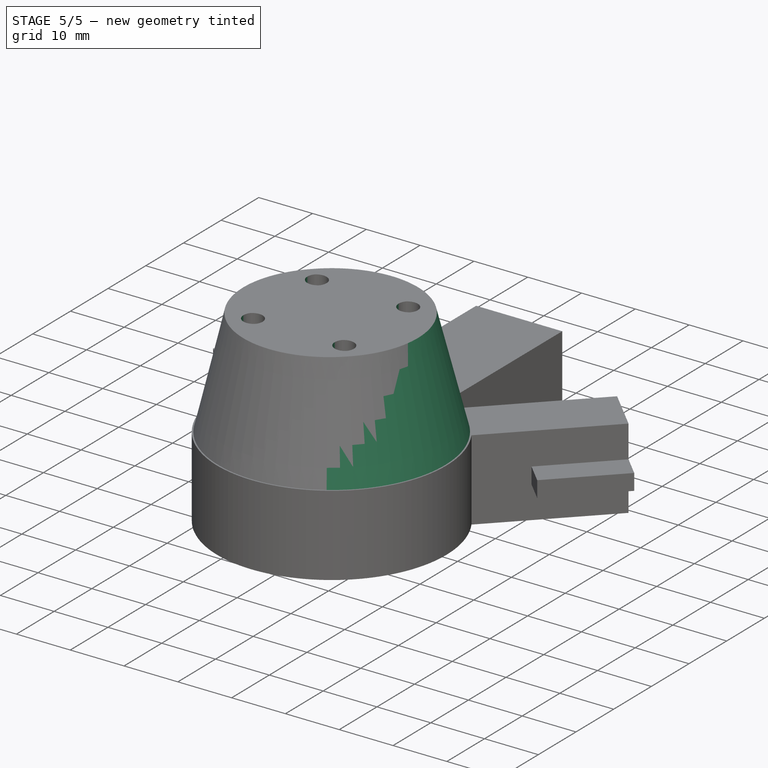
[diagram: stage 5 of 5 — iso view after this stage's code; geometry added in this stage tinted green]
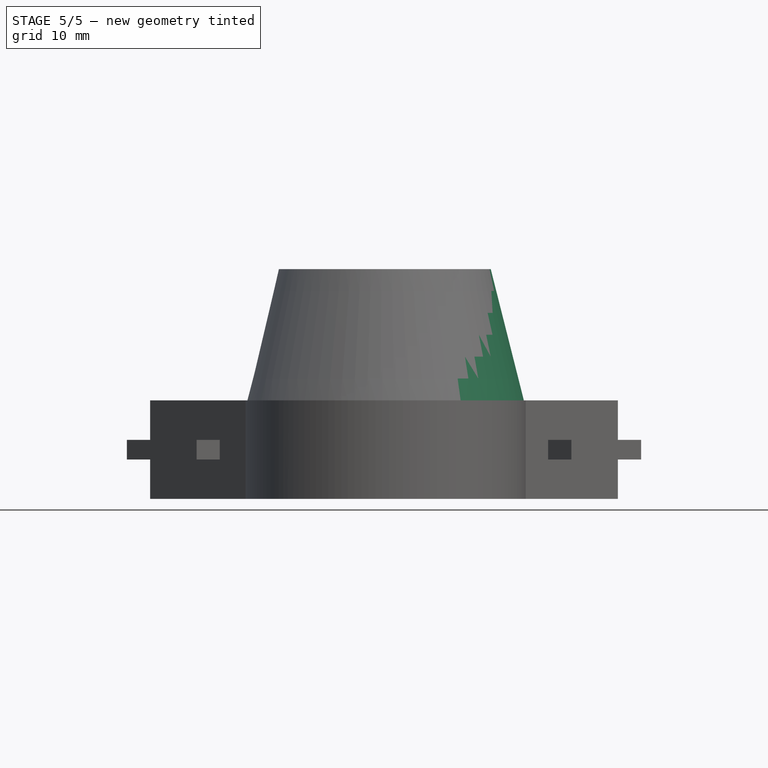
[diagram: stage 5 of 5 — front view after this stage's code; geometry added in this stage tinted green]
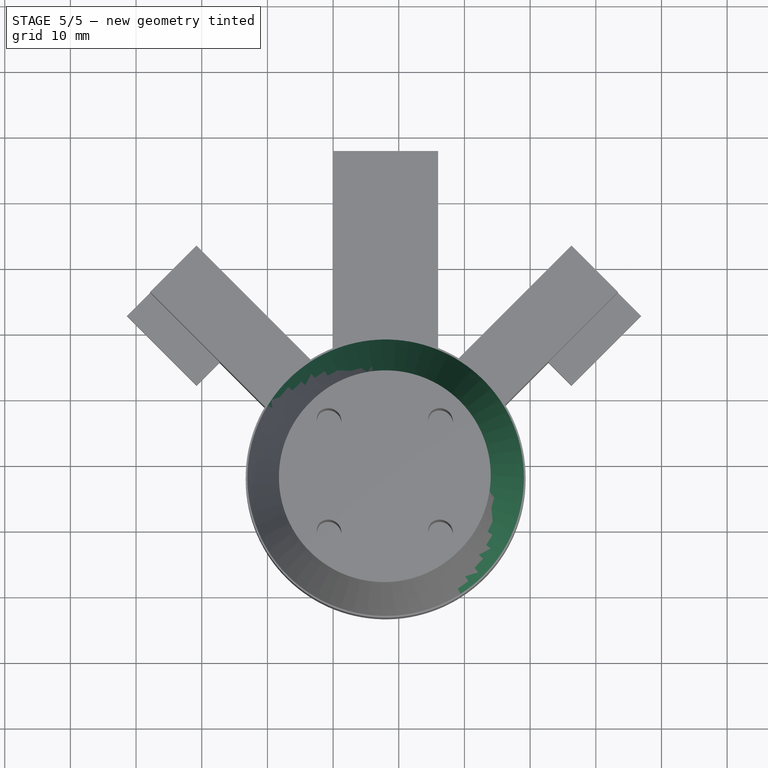
[diagram: stage 5 of 5 — top view after this stage's code; geometry added in this stage tinted green]
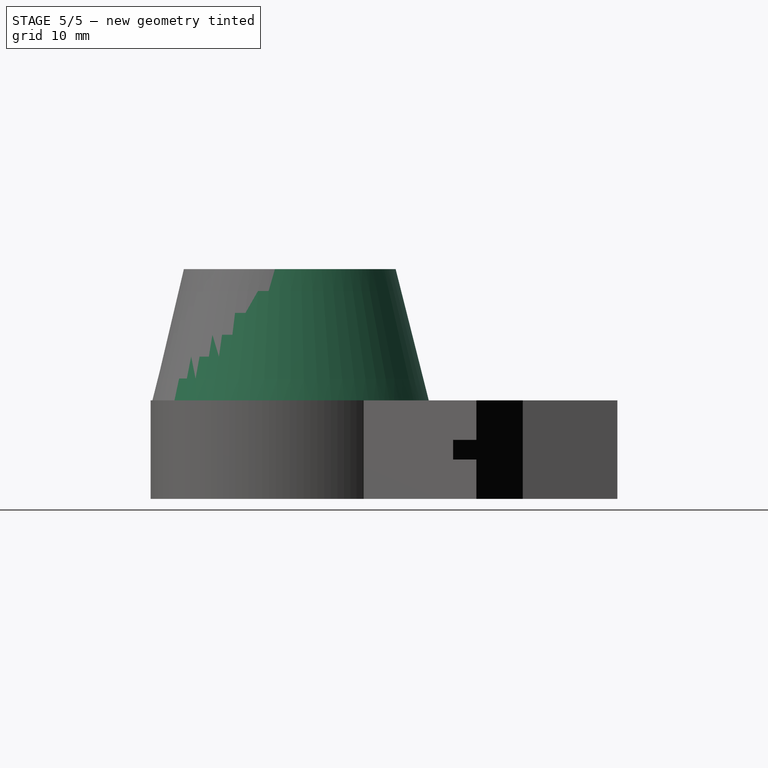
[diagram: stage 5 of 5 — right view after this stage's code; geometry added in this stage tinted green]
FEATURE [Sketcher::SketchObject] Sketch003  label="ShaftTopSketch"
  AttachmentOffset = pos=(0,0,20) rot=(0,0,1;0rad)
  ExternalGeometry = -> [Extrude]
  FullyConstrained = true
  MapMode = 5
  Placement = pos=(0,0,35) rot=(0,0,1;0rad)
  Support = -> [Extrude]
  sketch-geometry (1):
    g0: Circle CenterX=8 CenterY=8 CenterZ=0 NormalX=0 NormalY=0 NormalZ=1 AngleXU=0 Radius=16
  constraints (2):
    c: Diameter(g0) = 32
    c: Coincident(g0,g-3)
FEATURE [Sketcher::SketchObject] Sketch004  label="ShaftBottomSketch"
  AttachmentOffset = pos=(0,0,-1) rot=(0,0,1;0rad)
  ExternalGeometry = -> [Sketch003,Extrude]
  FullyConstrained = true
  MapMode = 5
  Placement = pos=(0,0,14) rot=(0,0,1;0rad)
  Support = -> [Extrude]
  sketch-geometry (2):
    g0: Circle CenterX=8 CenterY=8 CenterZ=0 NormalX=0 NormalY=0 NormalZ=1 AngleXU=0 Radius=21.3
    g1: LineSegment StartX=0 StartY=0 StartZ=0 EndX=16 EndY=16 EndZ=0
  constraints (4):
    c: Diameter(g0) = 42.6
    c: Coincident(g0,g-3)
    c: Coincident(g1,g-4)
    c: Coincident(g1,g-5)
FEATURE [Part::Loft] Loft  label="Shaft"
  Closed = false
  MaxDegree = 5
  Ruled = false
  Sections = -> [Sketch003,Sketch004]
  Solid = true
FEATURE [Sketcher::SketchObject] Sketch005  label="ScrewHolesSketch"
  ExternalGeometry = -> [Sketch003]
  FullyConstrained = true
  MapMode = 5
  Placement = pos=(0,0,35) rot=(0,0,1;0rad)
  Support = -> [Loft]
  sketch-geometry (8):
    g0: Circle CenterX=16.4853 CenterY=16.4853 CenterZ=0 NormalX=0 NormalY=0 NormalZ=1 AngleXU=0 Radius=2
    g1: LineSegment StartX=8 StartY=8 StartZ=0 EndX=16.4853 EndY=16.4853 EndZ=0
    g2: Circle CenterX=-0.485281 CenterY=16.4853 CenterZ=0 NormalX=0 NormalY=0 NormalZ=1 AngleXU=0 Radius=2
    g3: LineSegment StartX=8 StartY=8 StartZ=0 EndX=-0.485281 EndY=16.4853 EndZ=0
    g4: Circle CenterX=-0.485281 CenterY=-0.485281 CenterZ=0 NormalX=0 NormalY=0 NormalZ=1 AngleXU=0 Radius=2
    g5: LineSegment StartX=8 StartY=8 StartZ=0 EndX=-0.485281 EndY=-0.485281 EndZ=0
    g6: Circle CenterX=16.4853 CenterY=-0.485281 CenterZ=0 NormalX=0 NormalY=0 NormalZ=1 AngleXU=0 Radius=2
    g7: LineSegment StartX=8 StartY=8 StartZ=0 EndX=16.4853 EndY=-0.485281 EndZ=0
  constraints (20):
    c: Distance(g-3,g0) = 12
    c: Diameter(g0) = 4
    c: Coincident(g1,g-3)
    c: Coincident(g1,g0)
    c: Angle(g-1,g1) = 0.785398
    c: Diameter(g2) = 4
    c: Coincident(g3,g2)
    c: Distance(g3) = 12
    c: Coincident(g3,g1)
    c: Angle(g3,g-1) = 0.785398
    c: Diameter(g4) = 4
    c: Coincident(g5,g4)
    c: Angle(g-1,g5) = 0.785398
    c: Coincident(g5,g1)
    c: Distance(g5) = 12
    c: Diameter(g6) = 4
    c: Coincident(g7,g6)
    c: Distance(g7) = 12
    c: Coincident(g7,g1)
    c: Angle(g7,g-1) = 0.785398
FEATURE [Part::Extrusion] Extrude001  label="ScrewHoles"
  Base = -> Sketch005
  Dir = (0,0,1)
  DirMode = 2
  FaceMakerClass = Part::FaceMakerBullseye
  LengthFwd = 0
  LengthRev = 20
  Solid = true
  Symmetric = false
FEATURE [Part::MultiFuse] Fusion
  Shapes = -> [Loft,Extrude]
FEATURE [Part::Cut] Cut  label="Adapter"
  Base = -> Fusion
  Tool = -> Extrude001
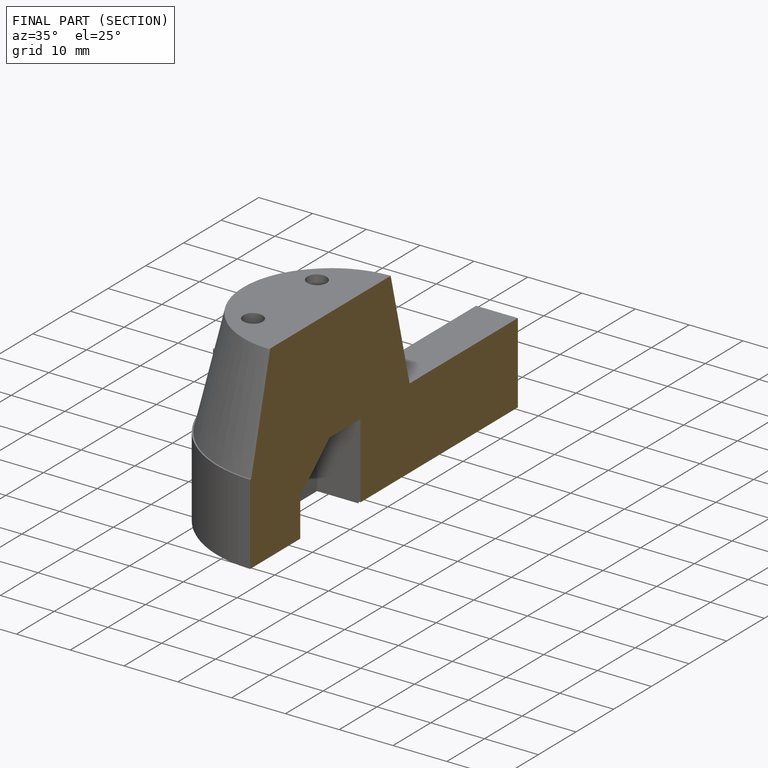
[diagram: finished part — half-section view (interior)]
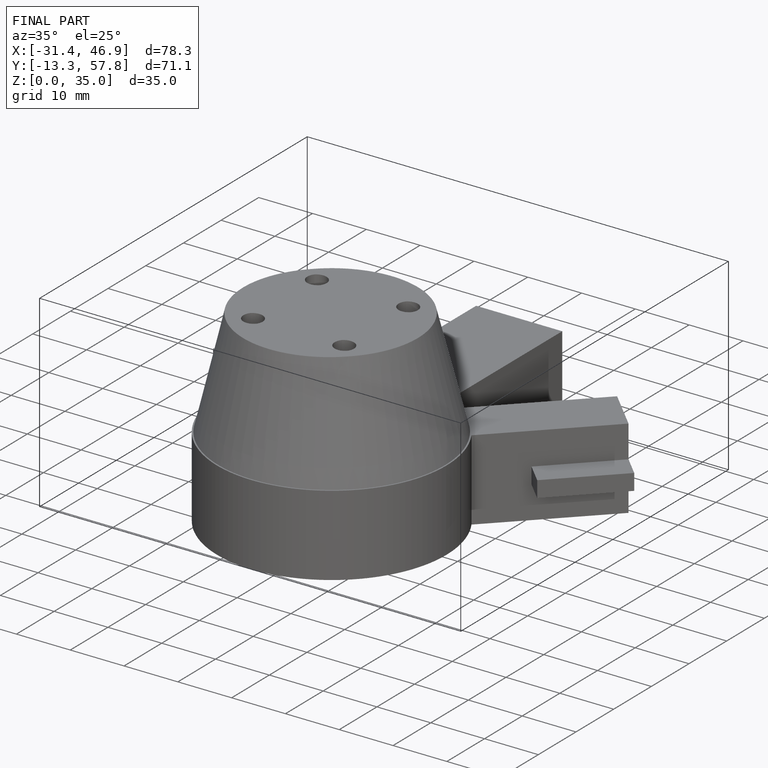
[diagram: finished part — iso view with bounding-box wireframe]
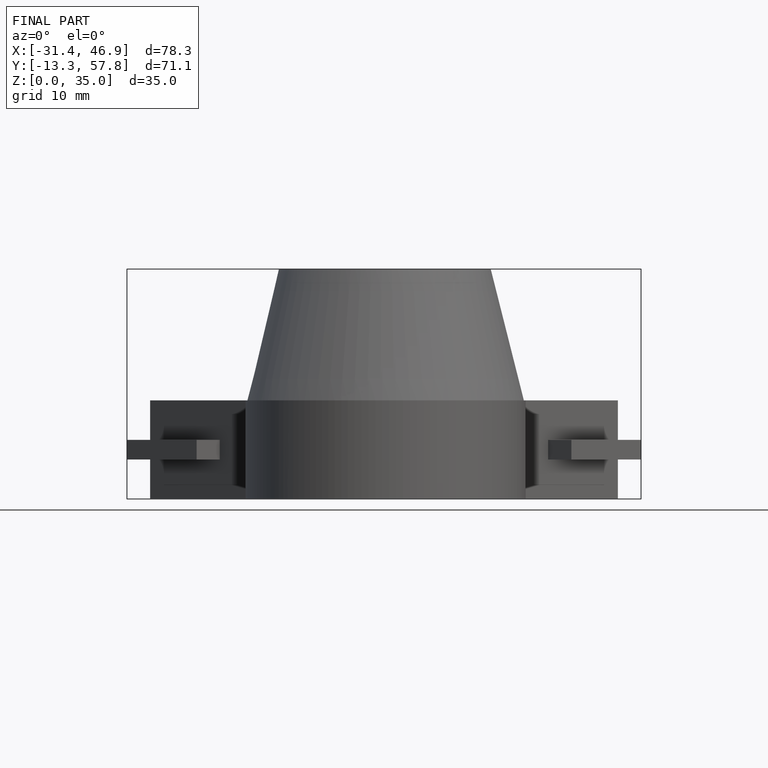
[diagram: finished part — front view with bounding-box wireframe]
